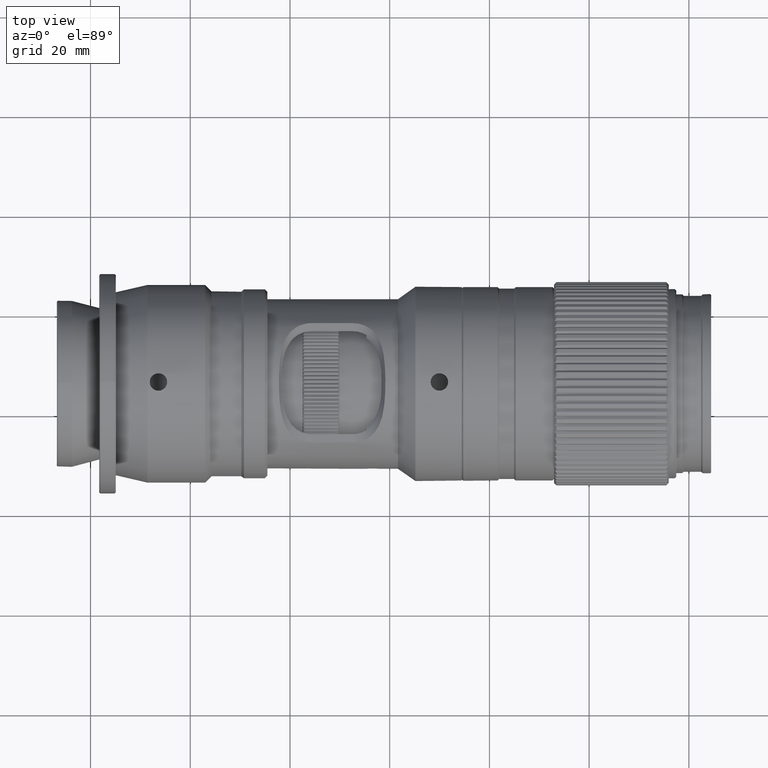
[diagram: clean part render]
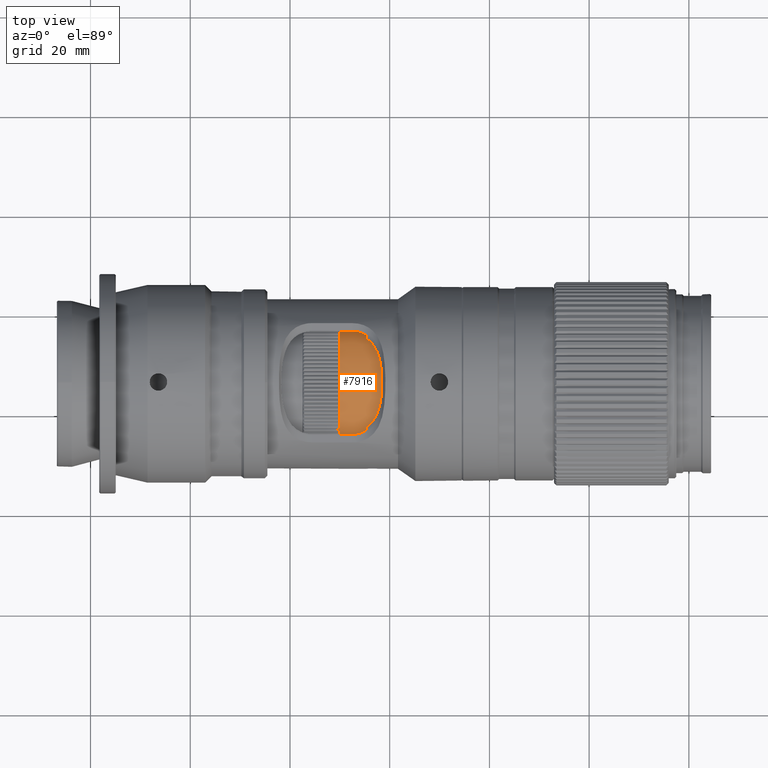
[diagram: same view with one face highlighted and labeled with its STEP entity id]
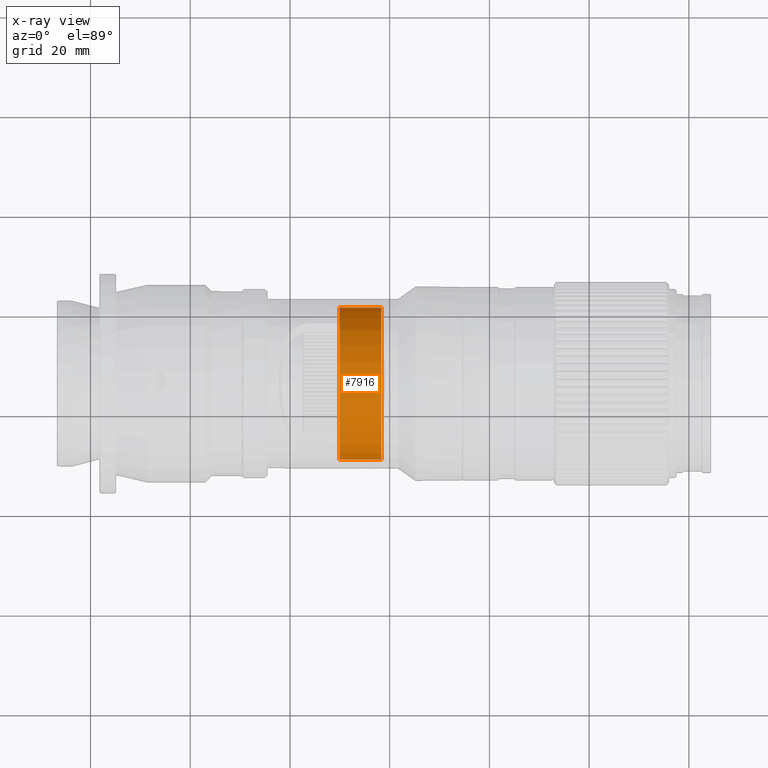
[diagram: x-ray of the same camera — body ghosted, the highlighted face saturated]
A machine part, top view. The second image highlights one B-rep face of the part: STEP entity #7916.
The next image is the same camera in x-ray: the body ghosted, the highlighted face saturated — about 0% of this face is hidden behind the body in this view.
In plain terms, the highlighted cylindrical surface (bore or boss wall) has radius 15.3 mm, axis along (-1, 0, -0).
Its self-contained STEP definition (entity closure, byte-faithful):
#1734 = CARTESIAN_POINT ( 'NONE',  ( 58.32812653004803849, 26.11023935412957897, 15.71905592086952907 ) ) ;
#2140 = EDGE_CURVE ( 'NONE', #12079, #12079, #23011, .T. ) ;
#5682 = AXIS2_PLACEMENT_3D ( 'NONE', #27821, #33071, #11869 ) ;
#7916 = ADVANCED_FACE ( 'NONE', ( #25217, #9091 ), #11880, .T. ) ;
#8294 = AXIS2_PLACEMENT_3D ( 'NONE', #21980, #8666, #33176 ) ;
#8666 = DIRECTION ( 'NONE',  ( -1.000000000000000000, 4.074283228702734631E-16, -1.509682209707670440E-16 ) ) ;
#9091 = FACE_OUTER_BOUND ( 'NONE', #31989, .T. ) ;
#10367 = ORIENTED_EDGE ( 'NONE', *, *, #24883, .T. ) ;
#11869 = DIRECTION ( 'NONE',  ( 4.535224773794770116E-16, 0.9964728531268188805, 0.08391574930427053713 ) ) ;
#11880 = CYLINDRICAL_SURFACE ( 'NONE', #23150, 15.30000000000271498 ) ;
#12079 = VERTEX_POINT ( 'NONE', #33105 ) ;
#12420 = DIRECTION ( 'NONE',  ( -1.000000000000000000, 4.074283228702734631E-16, -1.509682209707670440E-16 ) ) ;
#14230 = EDGE_LOOP ( 'NONE', ( #25007 ) ) ;
#20457 = CARTESIAN_POINT ( 'NONE',  ( 58.32812653004805270, 41.35627400697261180, 17.00296688522509569 ) ) ;
#21980 = CARTESIAN_POINT ( 'NONE',  ( 58.32812653004804559, 26.11023935412957897, 15.71905592086952907 ) ) ;
#23011 = CIRCLE ( 'NONE', #5682, 15.30000000000271143 ) ;
#23150 = AXIS2_PLACEMENT_3D ( 'NONE', #1734, #12420, #33428 ) ;
#24883 = EDGE_CURVE ( 'NONE', #28521, #28521, #29563, .T. ) ;
#25007 = ORIENTED_EDGE ( 'NONE', *, *, #2140, .T. ) ;
#25217 = FACE_OUTER_BOUND ( 'NONE', #14230, .T. ) ;
#27821 = CARTESIAN_POINT ( 'NONE',  ( 49.93812653004839319, 26.11023935412958252, 15.71905592086952552 ) ) ;
#28521 = VERTEX_POINT ( 'NONE', #20457 ) ;
#29563 = CIRCLE ( 'NONE', #8294, 15.30000000000271498 ) ;
#31989 = EDGE_LOOP ( 'NONE', ( #10367 ) ) ;
#33071 = DIRECTION ( 'NONE',  ( 1.000000000000000000, -4.074283228702734631E-16, 1.509682209707670440E-16 ) ) ;
#33105 = CARTESIAN_POINT ( 'NONE',  ( 49.93812653004840030, 41.35627400697261180, 17.00296688522509214 ) ) ;
#33176 = DIRECTION ( 'NONE',  ( 4.535224773794769130E-16, 0.9964728531268188805, 0.08391574930427052326 ) ) ;
#33428 = DIRECTION ( 'NONE',  ( 4.535224773794769130E-16, 0.9964728531268188805, 0.08391574930427052326 ) ) ;